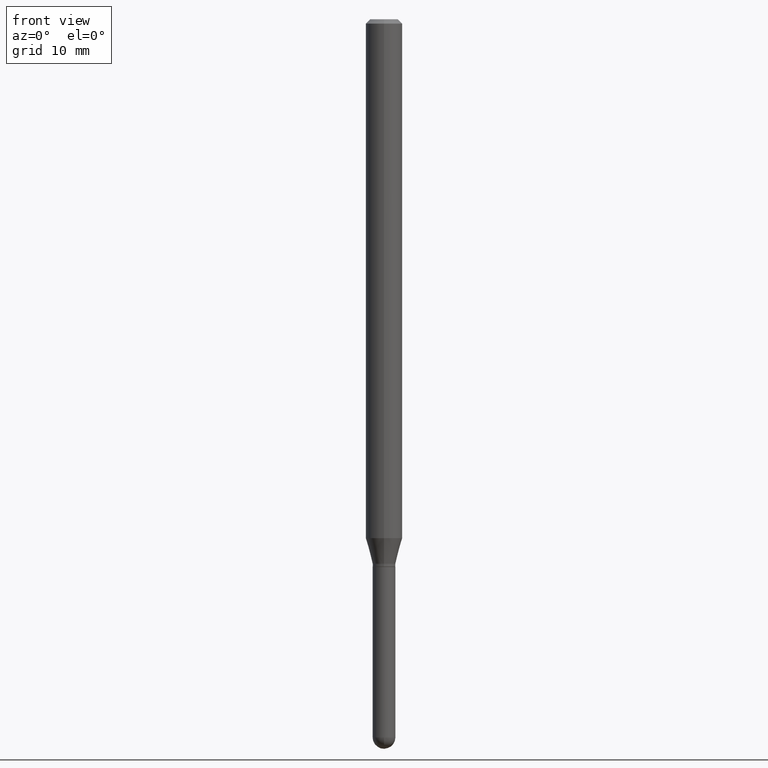
[diagram: clean part render]
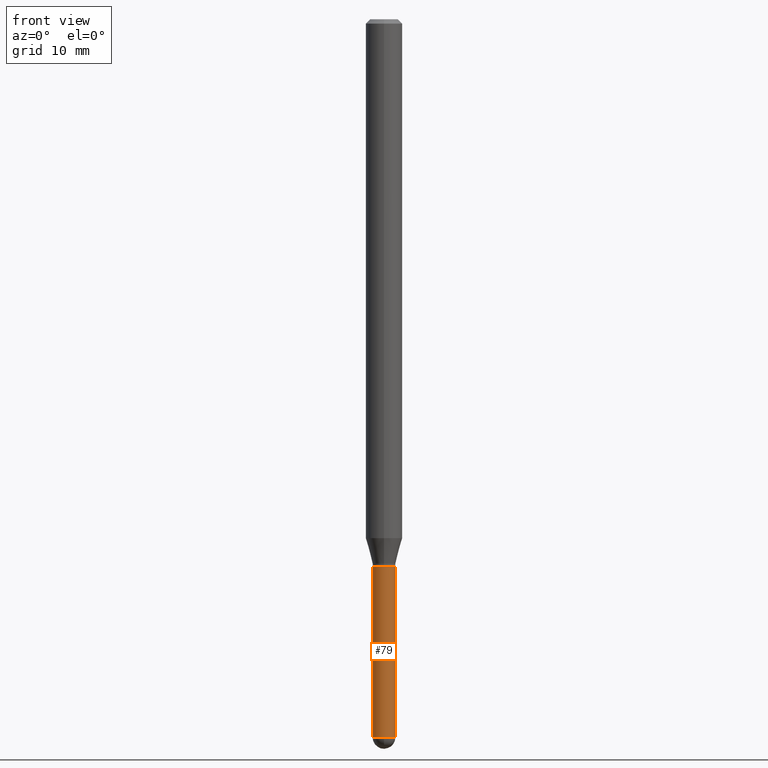
[diagram: same view with one face highlighted and labeled with its STEP entity id]
A machine part, front view. The second image highlights one B-rep face of the part: STEP entity #79.
In plain terms, the highlighted cylindrical surface (edge-blend (fillet) strip) has radius 0.9906 mm, axis along (-0, 0, 1).
Its self-contained STEP definition (entity closure, byte-faithful):
#7 = AXIS2_PLACEMENT_3D ( 'NONE', #492, #26, #281 ) ;
#9 = VERTEX_POINT ( 'NONE', #100 ) ;
#26 = DIRECTION ( 'NONE',  ( -2.445468806185136597E-29, 3.491481338843145583E-15, 1.000000000000000000 ) ) ;
#37 = EDGE_CURVE ( 'NONE', #67, #258, #356, .T. ) ;
#66 = ORIENTED_EDGE ( 'NONE', *, *, #166, .T. ) ;
#67 = VERTEX_POINT ( 'NONE', #471 ) ;
#77 = DIRECTION ( 'NONE',  ( -2.445468806185136597E-29, 3.491481338843145583E-15, 1.000000000000000000 ) ) ;
#79 = ADVANCED_FACE ( 'NONE', ( #314 ), #81, .T. ) ;
#81 = CYLINDRICAL_SURFACE ( 'NONE', #338, 0.03899999999999999994 ) ;
#93 = VERTEX_POINT ( 'NONE', #241 ) ;
#100 = CARTESIAN_POINT ( 'NONE',  ( 0.03899999999999999994, -6.822354536099505737E-15, -1.876000000000000112 ) ) ;
#120 = CARTESIAN_POINT ( 'NONE',  ( 6.018298732021620914E-29, -8.592535574892981353E-15, -2.460999999999999854 ) ) ;
#125 = LINE ( 'NONE', #280, #470 ) ;
#127 = CARTESIAN_POINT ( 'NONE',  ( 0.03899999999999999994, -2.723355444297643682E-16, 1.901708942560414931E-30 ) ) ;
#131 = CIRCLE ( 'NONE', #248, 0.03899999999999999994 ) ;
#144 = EDGE_CURVE ( 'NONE', #258, #9, #172, .T. ) ;
#150 = AXIS2_PLACEMENT_3D ( 'NONE', #120, #77, #231 ) ;
#166 = EDGE_CURVE ( 'NONE', #482, #67, #264, .T. ) ;
#172 = LINE ( 'NONE', #127, #477 ) ;
#179 = EDGE_LOOP ( 'NONE', ( #421, #66, #326, #270, #387 ) ) ;
#184 = CARTESIAN_POINT ( 'NONE',  ( 0.03899999999999999994, -7.843612827711125557E-15, -2.460999999999999854 ) ) ;
#202 = CARTESIAN_POINT ( 'NONE',  ( -0.03899999999999999994, -7.294165616334921426E-15, -2.460999999999999854 ) ) ;
#228 = DIRECTION ( 'NONE',  ( -2.445468806185136597E-29, 3.491481338843145583E-15, 1.000000000000000000 ) ) ;
#231 = DIRECTION ( 'NONE',  ( 1.000000000000000000, -6.982962677686283277E-15, 0.000000000000000000 ) ) ;
#241 = CARTESIAN_POINT ( 'NONE',  ( -0.03899999999999999994, -7.294165616334921426E-15, -1.876000000000000112 ) ) ;
#248 = AXIS2_PLACEMENT_3D ( 'NONE', #267, #228, #501 ) ;
#258 = VERTEX_POINT ( 'NONE', #184 ) ;
#264 = CIRCLE ( 'NONE', #7, 0.03899999999999999994 ) ;
#267 = CARTESIAN_POINT ( 'NONE',  ( 4.587699480403316722E-29, -6.550018991669741714E-15, -1.876000000000000112 ) ) ;
#268 = DIRECTION ( 'NONE',  ( -2.445468806185136597E-29, 3.491481338843145583E-15, 1.000000000000000000 ) ) ;
#270 = ORIENTED_EDGE ( 'NONE', *, *, #144, .T. ) ;
#279 = EDGE_CURVE ( 'NONE', #482, #93, #125, .T. ) ;
#280 = CARTESIAN_POINT ( 'NONE',  ( -0.03899999999999999994, 2.771116669464390721E-16, -1.918384685199413078E-30 ) ) ;
#281 = DIRECTION ( 'NONE',  ( 1.000000000000000000, -6.982962677686283277E-15, 0.000000000000000000 ) ) ;
#314 = FACE_OUTER_BOUND ( 'NONE', #179, .T. ) ;
#326 = ORIENTED_EDGE ( 'NONE', *, *, #37, .T. ) ;
#338 = AXIS2_PLACEMENT_3D ( 'NONE', #342, #268, #414 ) ;
#342 = CARTESIAN_POINT ( 'NONE',  ( 0.000000000000000000, 0.000000000000000000, 0.000000000000000000 ) ) ;
#356 = CIRCLE ( 'NONE', #150, 0.03899999999999999994 ) ;
#387 = ORIENTED_EDGE ( 'NONE', *, *, #511, .F. ) ;
#414 = DIRECTION ( 'NONE',  ( 1.000000000000000000, -6.982962677686265922E-15, 4.876176775795935793E-29 ) ) ;
#421 = ORIENTED_EDGE ( 'NONE', *, *, #279, .F. ) ;
#431 = DIRECTION ( 'NONE',  ( -2.445468806185136877E-29, 3.491481338843145188E-15, 1.000000000000000000 ) ) ;
#470 = VECTOR ( 'NONE', #431, 39.37007874015748143 ) ;
#471 = CARTESIAN_POINT ( 'NONE',  ( -2.771116669463774916E-16, -0.03900000000000840295, -2.460999999999999854 ) ) ;
#476 = DIRECTION ( 'NONE',  ( -2.445468806185136877E-29, 3.491481338843145188E-15, 1.000000000000000000 ) ) ;
#477 = VECTOR ( 'NONE', #476, 39.37007874015748143 ) ;
#482 = VERTEX_POINT ( 'NONE', #202 ) ;
#492 = CARTESIAN_POINT ( 'NONE',  ( 6.018298732021620914E-29, -8.592535574892981353E-15, -2.460999999999999854 ) ) ;
#501 = DIRECTION ( 'NONE',  ( 1.000000000000000000, -6.982962677686258033E-15, 0.000000000000000000 ) ) ;
#511 = EDGE_CURVE ( 'NONE', #93, #9, #131, .T. ) ;